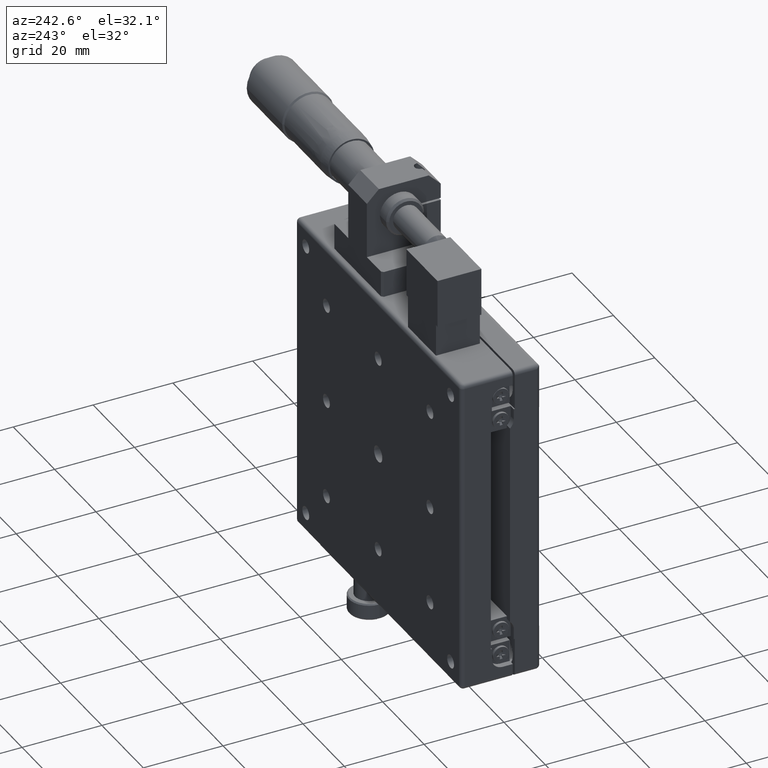
[diagram: clean part render]
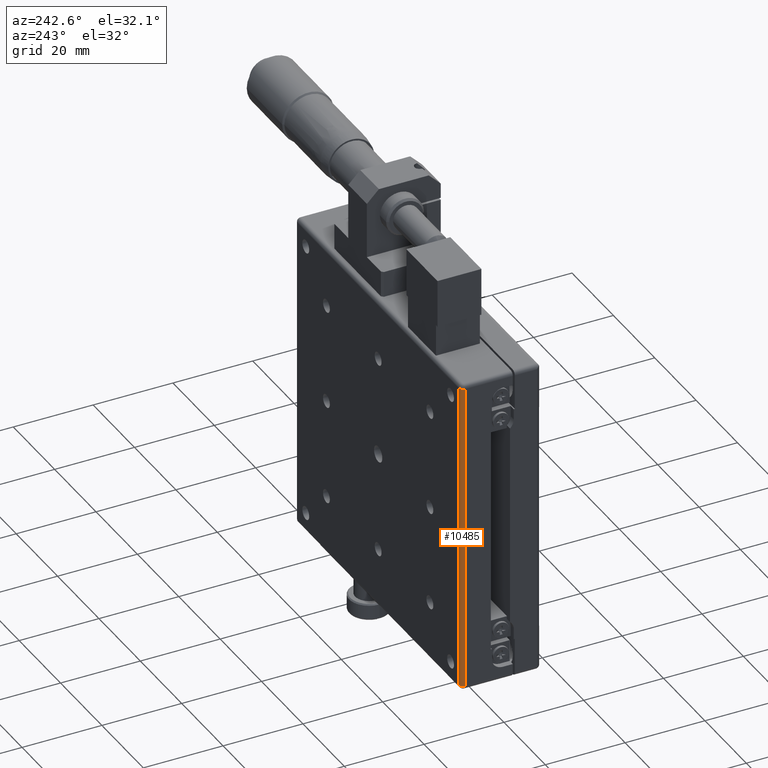
[diagram: same view with one face highlighted and labeled with its STEP entity id]
A machine part, auxiliary view. The second image highlights one B-rep face of the part: STEP entity #10485.
In plain terms, the highlighted cylindrical surface (edge-blend (fillet) strip) has radius 1 mm, axis along (0, 0, -1).
Its self-contained STEP definition (entity closure, byte-faithful):
#1352 = ORIENTED_EDGE ( 'NONE', *, *, #4282, .F. ) ;
#1458 = VERTEX_POINT ( 'NONE', #30152 ) ;
#1763 = AXIS2_PLACEMENT_3D ( 'NONE', #8219, #12973, #14866 ) ;
#2109 = EDGE_CURVE ( 'NONE', #23456, #4335, #14322, .T. ) ;
#2134 = ORIENTED_EDGE ( 'NONE', *, *, #2109, .T. ) ;
#3753 = VERTEX_POINT ( 'NONE', #9676 ) ;
#3936 = EDGE_LOOP ( 'NONE', ( #1352, #17417, #9269, #2134 ) ) ;
#4110 = CARTESIAN_POINT ( 'NONE',  ( -42.59855123262065035, 12.64470148381819925, 40.00000000000000000 ) ) ;
#4282 = EDGE_CURVE ( 'NONE', #1458, #4335, #26081, .T. ) ;
#4335 = VERTEX_POINT ( 'NONE', #29214 ) ;
#5192 = AXIS2_PLACEMENT_3D ( 'NONE', #10106, #12481, #15011 ) ;
#5203 = CIRCLE ( 'NONE', #5192, 0.9999999999999991118 ) ;
#7656 = CARTESIAN_POINT ( 'NONE',  ( -42.59855123262065035, 11.64470148381819925, 39.00000000000000000 ) ) ;
#7755 = AXIS2_PLACEMENT_3D ( 'NONE', #7656, #17291, #14939 ) ;
#8070 = FACE_OUTER_BOUND ( 'NONE', #3936, .T. ) ;
#8219 = CARTESIAN_POINT ( 'NONE',  ( -42.59855123262065035, 11.64470148381819925, 40.00000000000000000 ) ) ;
#9269 = ORIENTED_EDGE ( 'NONE', *, *, #22242, .F. ) ;
#9676 = CARTESIAN_POINT ( 'NONE',  ( -43.59855123262065035, 11.64470148381819925, -39.00000000000000000 ) ) ;
#10106 = CARTESIAN_POINT ( 'NONE',  ( -42.59855123262065035, 11.64470148381819925, -39.00000000000000000 ) ) ;
#10485 = ADVANCED_FACE ( 'NONE', ( #8070 ), #27020, .T. ) ;
#12414 = VECTOR ( 'NONE', #28804, 1000.000000000000000 ) ;
#12481 = DIRECTION ( 'NONE',  ( 0.000000000000000000, 0.000000000000000000, 1.000000000000000000 ) ) ;
#12973 = DIRECTION ( 'NONE',  ( 0.000000000000000000, 0.000000000000000000, -1.000000000000000000 ) ) ;
#13154 = CARTESIAN_POINT ( 'NONE',  ( -43.59855123262065035, 11.64470148381819925, 39.00000000000000000 ) ) ;
#13763 = DIRECTION ( 'NONE',  ( 0.000000000000000000, -1.224606353822375779E-16, 1.000000000000000000 ) ) ;
#14322 = CIRCLE ( 'NONE', #7755, 0.9999999999999991118 ) ;
#14344 = EDGE_CURVE ( 'NONE', #1458, #3753, #5203, .T. ) ;
#14866 = DIRECTION ( 'NONE',  ( 0.000000000000000000, 1.000000000000000000, 0.000000000000000000 ) ) ;
#14939 = DIRECTION ( 'NONE',  ( 0.000000000000000000, 1.000000000000000000, 0.000000000000000000 ) ) ;
#15011 = DIRECTION ( 'NONE',  ( 0.000000000000000000, 1.000000000000000000, 0.000000000000000000 ) ) ;
#17291 = DIRECTION ( 'NONE',  ( 0.000000000000000000, 0.000000000000000000, -1.000000000000000000 ) ) ;
#17417 = ORIENTED_EDGE ( 'NONE', *, *, #14344, .T. ) ;
#19336 = LINE ( 'NONE', #26300, #12414 ) ;
#22242 = EDGE_CURVE ( 'NONE', #23456, #3753, #19336, .T. ) ;
#23456 = VERTEX_POINT ( 'NONE', #13154 ) ;
#24089 = VECTOR ( 'NONE', #13763, 1000.000000000000000 ) ;
#26081 = LINE ( 'NONE', #4110, #24089 ) ;
#26300 = CARTESIAN_POINT ( 'NONE',  ( -43.59855123262065035, 11.64470148381819925, -40.00000000000000000 ) ) ;
#27020 = CYLINDRICAL_SURFACE ( 'NONE', #1763, 0.9999999999999991118 ) ;
#28804 = DIRECTION ( 'NONE',  ( 0.000000000000000000, 1.224606353822375779E-16, -1.000000000000000000 ) ) ;
#29214 = CARTESIAN_POINT ( 'NONE',  ( -42.59855123262065035, 12.64470148381819925, 39.00000000000000000 ) ) ;
#30152 = CARTESIAN_POINT ( 'NONE',  ( -42.59855123262065035, 12.64470148381819925, -39.00000000000000000 ) ) ;